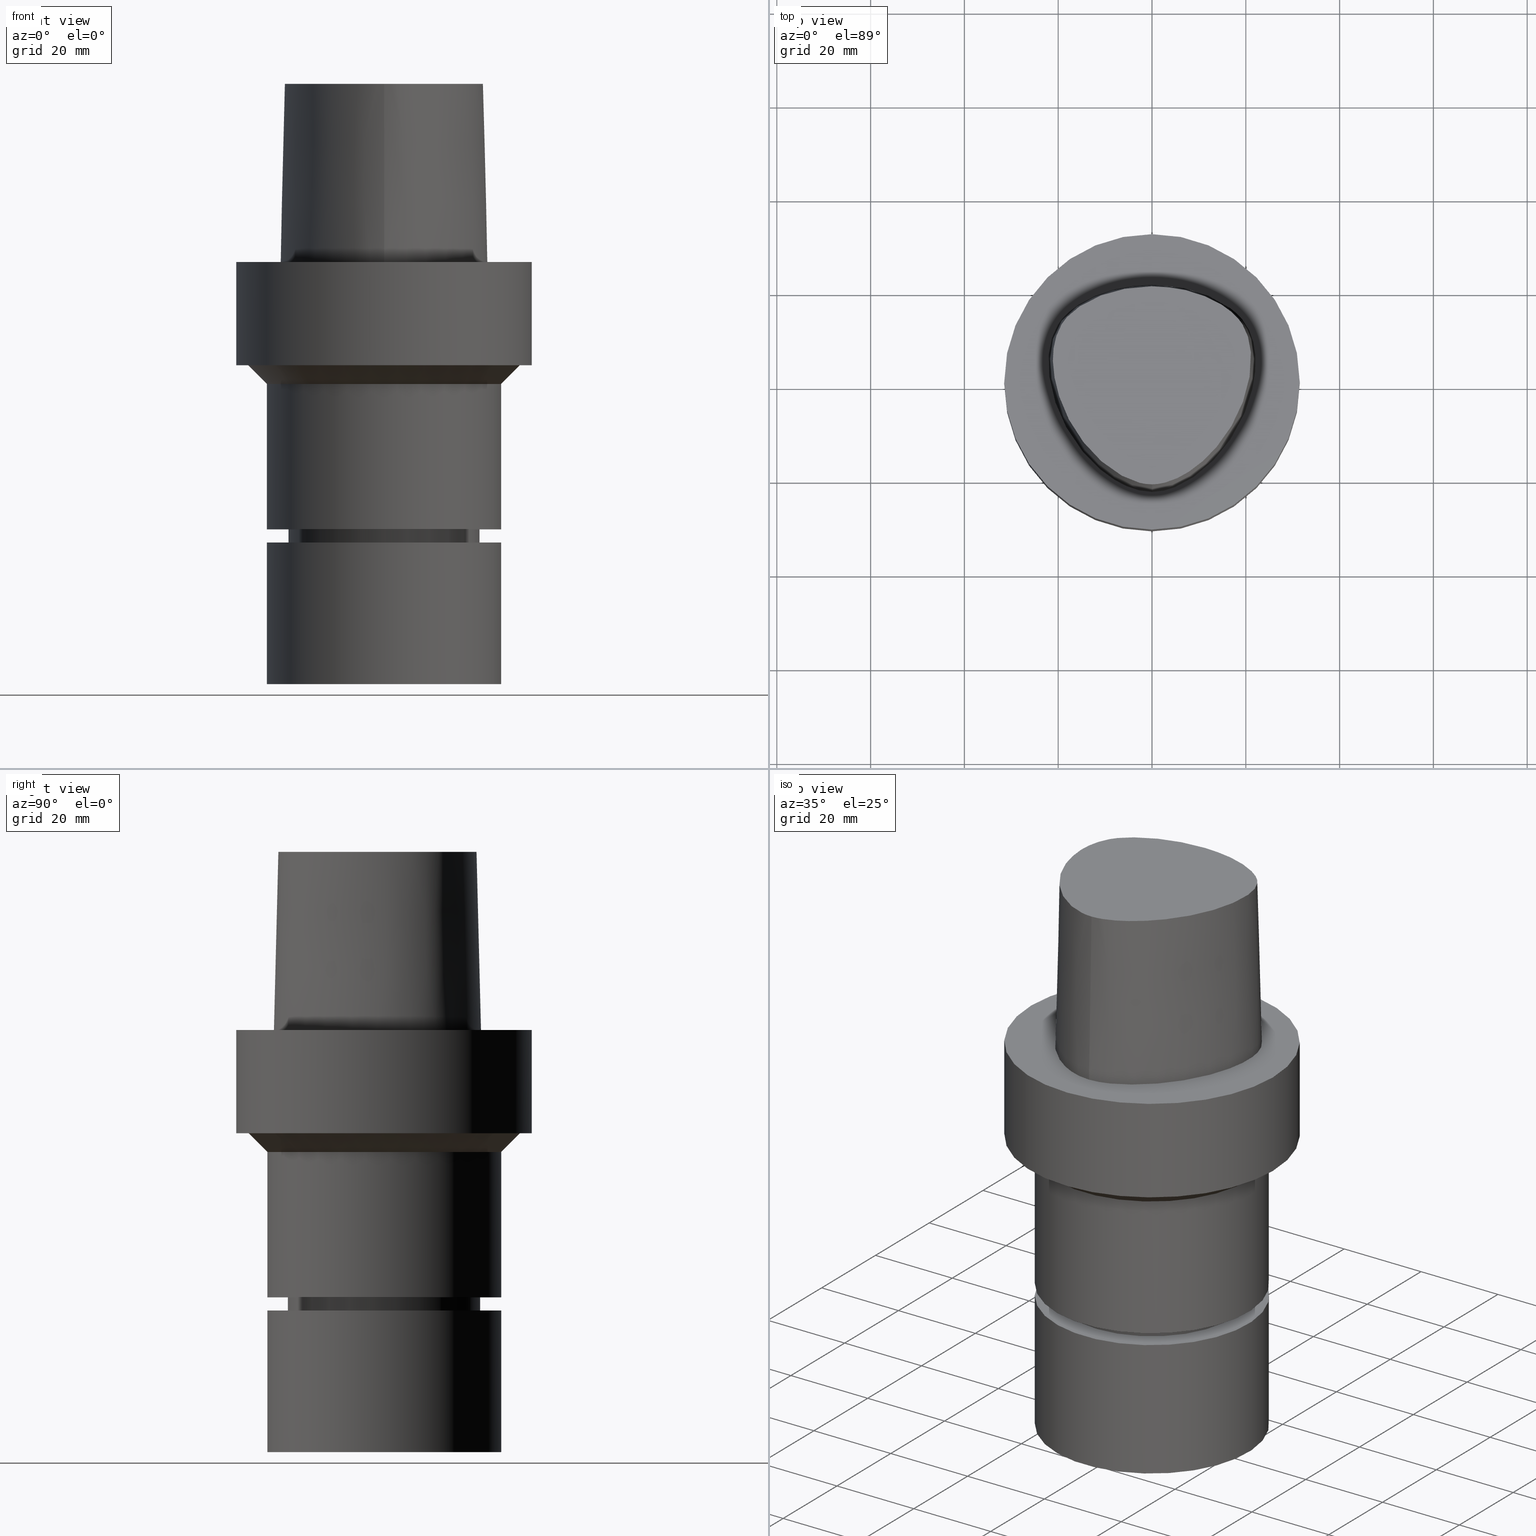
[diagram: canonical four-view strip — front | top / right | iso, engineering-drawing reading convention]
A machine part, canonical four-view strip (front | top / right | iso — engineering-drawing reading convention). The complete STEP part file that produces these views, byte-faithful:
ISO-10303-21;
HEADER;
FILE_DESCRIPTION((''),'1');
FILE_NAME('V:/90_\X2\53D65F9730C730FC30BF\X0\/00_\X2\6DE18DEF30C730FC30BF\X0\/ALL/CAPTO-BKUS\X2\52A05DE556F3\X0\_201801/C6-MEGAER/C6-MEGAER32-90NL.stp','2018-02-01T08:48:47',(''),(''),'Spatial Interop R21 SP3','Kubotek KeyCreator 2011 V10.0.2 (22737)',' ');
FILE_SCHEMA(('automotive_design'));
ENDSEC;
DATA;
#1=MECHANICAL_DESIGN_GEOMETRIC_PRESENTATION_REPRESENTATION(' ',(#14,#15,#16,#17,#18,#19,#20,#21,#22,#23,#24,#25,#26,#27,#28,#29,#30,#31,#32,#33,#34,#35,#36,#37,#38,#39,#40,#41,#42,#43,#44,#45,#46,#47,#48,#49,#50,#51,#52,#53),#10);
#2=PRODUCT_DEFINITION_CONTEXT('',#54,'design');
#3=APPLICATION_PROTOCOL_DEFINITION('INTERNATIONAL STANDARD','automotive_design',1994,#54);
#4=PRODUCT_CATEGORY_RELATIONSHIP('NONE','NONE',#55,#56);
#5=SHAPE_DEFINITION_REPRESENTATION(#57,#58);
#6=PRODUCT_DEFINITION_CONTEXT('',#59,'design');
#7=APPLICATION_PROTOCOL_DEFINITION('INTERNATIONAL STANDARD','automotive_design',1994,#59);
#8=PRODUCT_CATEGORY_RELATIONSHIP('NONE','NONE',#60,#61);
#9=SHAPE_DEFINITION_REPRESENTATION(#62,#63);
#10= (GEOMETRIC_REPRESENTATION_CONTEXT(3)GLOBAL_UNCERTAINTY_ASSIGNED_CONTEXT((#66))GLOBAL_UNIT_ASSIGNED_CONTEXT((#68,#69,#70))REPRESENTATION_CONTEXT('NONE','WORKSPACE'));
#14=STYLED_ITEM('',(#72),#73);
#15=STYLED_ITEM('',(#74),#75);
#16=STYLED_ITEM('',(#76,#77),#78);
#17=STYLED_ITEM('',(#79),#80);
#18=STYLED_ITEM('',(#81,#82),#83);
#19=STYLED_ITEM('',(#84,#85),#86);
#20=STYLED_ITEM('',(#87),#88);
#21=STYLED_ITEM('',(#89,#90),#91);
#22=STYLED_ITEM('',(#92),#93);
#23=STYLED_ITEM('',(#94),#95);
#24=STYLED_ITEM('',(#96,#97),#98);
#25=STYLED_ITEM('',(#99),#100);
#26=STYLED_ITEM('',(#101,#102),#103);
#27=STYLED_ITEM('',(#104),#105);
#28=STYLED_ITEM('',(#106,#107),#108);
#29=STYLED_ITEM('',(#109,#110),#111);
#30=STYLED_ITEM('',(#112),#113);
#31=STYLED_ITEM('',(#114),#115);
#32=STYLED_ITEM('',(#116,#117),#118);
#33=STYLED_ITEM('',(#119,#120),#121);
#34=STYLED_ITEM('',(#122,#123),#124);
#35=STYLED_ITEM('',(#125,#126),#127);
#36=STYLED_ITEM('',(#128,#129),#130);
#37=STYLED_ITEM('',(#131),#132);
#38=STYLED_ITEM('',(#133,#134),#135);
#39=STYLED_ITEM('',(#136,#137),#138);
#40=STYLED_ITEM('',(#139,#140),#141);
#41=STYLED_ITEM('',(#142),#143);
#42=STYLED_ITEM('',(#144,#145),#146);
#43=STYLED_ITEM('',(#147),#148);
#44=STYLED_ITEM('',(#149),#150);
#45=STYLED_ITEM('',(#151),#152);
#46=STYLED_ITEM('',(#153),#154);
#47=STYLED_ITEM('',(#155),#156);
#48=STYLED_ITEM('',(#157,#158),#159);
#49=STYLED_ITEM('',(#160),#161);
#50=STYLED_ITEM('',(#162),#163);
#51=STYLED_ITEM('',(#164),#165);
#52=STYLED_ITEM('',(#166,#167),#168);
#53=STYLED_ITEM('',(#169,#170),#171);
#54=APPLICATION_CONTEXT(' ');
#55=PRODUCT_CATEGORY('part','NONE');
#56=PRODUCT_RELATED_PRODUCT_CATEGORY('detail',' ',(#172));
#57=PRODUCT_DEFINITION_SHAPE('NONE','NONE',#173);
#58=ADVANCED_BREP_SHAPE_REPRESENTATION('Unnamed[1]',(#108,#174),#10);
#59=APPLICATION_CONTEXT(' ');
#60=PRODUCT_CATEGORY('part','NONE');
#61=PRODUCT_RELATED_PRODUCT_CATEGORY('detail',' ',(#175));
#62=PRODUCT_DEFINITION_SHAPE('NONE','NONE',#176);
#63=ADVANCED_BREP_SHAPE_REPRESENTATION('Unnamed[1]',(#138,#177),#10);
#66=UNCERTAINTY_MEASURE_WITH_UNIT(LENGTH_MEASURE(1.0E-006),#68,'','');
#68= (CONVERSION_BASED_UNIT('MILLIMETRE',#180)LENGTH_UNIT()NAMED_UNIT(#183));
#69= (NAMED_UNIT(#185)PLANE_ANGLE_UNIT()SI_UNIT($,.RADIAN.));
#70= (NAMED_UNIT(#185)SOLID_ANGLE_UNIT()SI_UNIT($,.STERADIAN.));
#72=PRESENTATION_STYLE_ASSIGNMENT((#191));
#73=EDGE_CURVE('Unnamed[1]',#192,#192,#193,.T.);
#74=PRESENTATION_STYLE_ASSIGNMENT((#194));
#75=EDGE_CURVE('Unnamed[1]',#195,#195,#196,.T.);
#76=PRESENTATION_STYLE_ASSIGNMENT((#197));
#77=PRESENTATION_STYLE_ASSIGNMENT((#198));
#78=ADVANCED_FACE('Unnamed[1]',(#199,#200),#201,.T.);
#79=PRESENTATION_STYLE_ASSIGNMENT((#202));
#80=EDGE_CURVE('Unnamed[1]',#203,#204,#205,.T.);
#81=PRESENTATION_STYLE_ASSIGNMENT((#206));
#82=PRESENTATION_STYLE_ASSIGNMENT((#207));
#83=ADVANCED_FACE('Unnamed[1]',(#208,#209),#210,.T.);
#84=PRESENTATION_STYLE_ASSIGNMENT((#211));
#85=PRESENTATION_STYLE_ASSIGNMENT((#212));
#86=ADVANCED_FACE('Unnamed[1]',(#213,#214),#215,.T.);
#87=PRESENTATION_STYLE_ASSIGNMENT((#216));
#88=EDGE_CURVE('Unnamed[1]',#217,#217,#218,.T.);
#89=PRESENTATION_STYLE_ASSIGNMENT((#219));
#90=PRESENTATION_STYLE_ASSIGNMENT((#220));
#91=ADVANCED_FACE('Unnamed[1]',(#221),#222,.T.);
#92=PRESENTATION_STYLE_ASSIGNMENT((#223));
#93=EDGE_CURVE('Unnamed[1]',#224,#204,#225,.T.);
#94=PRESENTATION_STYLE_ASSIGNMENT((#226));
#95=EDGE_CURVE('Unnamed[1]',#227,#228,#229,.T.);
#96=PRESENTATION_STYLE_ASSIGNMENT((#230));
#97=PRESENTATION_STYLE_ASSIGNMENT((#231));
#98=ADVANCED_FACE('Unnamed[1]',(#232),#233,.T.);
#99=PRESENTATION_STYLE_ASSIGNMENT((#234));
#100=EDGE_CURVE('Unnamed[1]',#235,#235,#236,.T.);
#101=PRESENTATION_STYLE_ASSIGNMENT((#237));
#102=PRESENTATION_STYLE_ASSIGNMENT((#238));
#103=ADVANCED_FACE('Unnamed[1]',(#239,#240),#241,.T.);
#104=PRESENTATION_STYLE_ASSIGNMENT((#242));
#105=EDGE_CURVE('Unnamed[1]',#243,#243,#244,.T.);
#106=PRESENTATION_STYLE_ASSIGNMENT((#245));
#107=PRESENTATION_STYLE_ASSIGNMENT((#246));
#108=MANIFOLD_SOLID_BREP('Unnamed[1]',#247);
#109=PRESENTATION_STYLE_ASSIGNMENT((#248));
#110=PRESENTATION_STYLE_ASSIGNMENT((#249));
#111=ADVANCED_FACE('Unnamed[1]',(#250,#251),#252,.T.);
#112=PRESENTATION_STYLE_ASSIGNMENT((#253));
#113=EDGE_CURVE('Unnamed[1]',#254,#254,#255,.T.);
#114=PRESENTATION_STYLE_ASSIGNMENT((#256));
#115=EDGE_CURVE('Unnamed[1]',#257,#257,#258,.T.);
#116=PRESENTATION_STYLE_ASSIGNMENT((#259));
#117=PRESENTATION_STYLE_ASSIGNMENT((#260));
#118=ADVANCED_FACE('Unnamed[1]',(#261),#262,.T.);
#119=PRESENTATION_STYLE_ASSIGNMENT((#263));
#120=PRESENTATION_STYLE_ASSIGNMENT((#264));
#121=ADVANCED_FACE('Unnamed[1]',(#265),#266,.T.);
#122=PRESENTATION_STYLE_ASSIGNMENT((#267));
#123=PRESENTATION_STYLE_ASSIGNMENT((#268));
#124=ADVANCED_FACE('Unnamed[1]',(#269),#270,.T.);
#125=PRESENTATION_STYLE_ASSIGNMENT((#271));
#126=PRESENTATION_STYLE_ASSIGNMENT((#272));
#127=ADVANCED_FACE('Unnamed[1]',(#273,#274),#275,.T.);
#128=PRESENTATION_STYLE_ASSIGNMENT((#276));
#129=PRESENTATION_STYLE_ASSIGNMENT((#277));
#130=ADVANCED_FACE('Unnamed[1]',(#278,#279),#280,.T.);
#131=PRESENTATION_STYLE_ASSIGNMENT((#281));
#132=EDGE_CURVE('Unnamed[1]',#282,#282,#283,.T.);
#133=PRESENTATION_STYLE_ASSIGNMENT((#284));
#134=PRESENTATION_STYLE_ASSIGNMENT((#285));
#135=ADVANCED_FACE('Unnamed[1]',(#286,#287),#288,.T.);
#136=PRESENTATION_STYLE_ASSIGNMENT((#289));
#137=PRESENTATION_STYLE_ASSIGNMENT((#290));
#138=MANIFOLD_SOLID_BREP('Unnamed[1]',#291);
#139=PRESENTATION_STYLE_ASSIGNMENT((#292));
#140=PRESENTATION_STYLE_ASSIGNMENT((#293));
#141=ADVANCED_FACE('Unnamed[1]',(#294),#295,.T.);
#142=PRESENTATION_STYLE_ASSIGNMENT((#296));
#143=EDGE_CURVE('Unnamed[1]',#224,#227,#297,.T.);
#144=PRESENTATION_STYLE_ASSIGNMENT((#298));
#145=PRESENTATION_STYLE_ASSIGNMENT((#299));
#146=ADVANCED_FACE('Unnamed[1]',(#300,#301),#302,.T.);
#147=PRESENTATION_STYLE_ASSIGNMENT((#303));
#148=EDGE_CURVE('Unnamed[1]',#204,#228,#304,.T.);
#149=PRESENTATION_STYLE_ASSIGNMENT((#305));
#150=EDGE_CURVE('Unnamed[1]',#228,#203,#306,.T.);
#151=PRESENTATION_STYLE_ASSIGNMENT((#307));
#152=EDGE_CURVE('Unnamed[1]',#308,#308,#309,.T.);
#153=PRESENTATION_STYLE_ASSIGNMENT((#310));
#154=EDGE_CURVE('Unnamed[1]',#311,#311,#312,.T.);
#155=PRESENTATION_STYLE_ASSIGNMENT((#313));
#156=EDGE_CURVE('Unnamed[1]',#227,#224,#314,.T.);
#157=PRESENTATION_STYLE_ASSIGNMENT((#315));
#158=PRESENTATION_STYLE_ASSIGNMENT((#316));
#159=ADVANCED_FACE('Unnamed[1]',(#317),#318,.T.);
#160=PRESENTATION_STYLE_ASSIGNMENT((#319));
#161=EDGE_CURVE('Unnamed[1]',#227,#203,#320,.T.);
#162=PRESENTATION_STYLE_ASSIGNMENT((#321));
#163=EDGE_CURVE('Unnamed[1]',#322,#322,#323,.T.);
#164=PRESENTATION_STYLE_ASSIGNMENT((#324));
#165=EDGE_CURVE('Unnamed[1]',#325,#325,#326,.T.);
#166=PRESENTATION_STYLE_ASSIGNMENT((#327));
#167=PRESENTATION_STYLE_ASSIGNMENT((#328));
#168=ADVANCED_FACE('Unnamed[1]',(#329,#330),#331,.T.);
#169=PRESENTATION_STYLE_ASSIGNMENT((#332));
#170=PRESENTATION_STYLE_ASSIGNMENT((#333));
#171=ADVANCED_FACE('Unnamed[1]',(#334,#335),#336,.T.);
#172=PRODUCT('Unnamed[1]','Unnamed[1]','PART-Unnamed[1]-DESC',(#337));
#173=PRODUCT_DEFINITION('NONE','NONE',#338,#2);
#174=AXIS2_PLACEMENT_3D('',#339,#340,#341);
#175=PRODUCT('Unnamed[1]','Unnamed[1]','PART-Unnamed[1]-DESC',(#342));
#176=PRODUCT_DEFINITION('NONE','NONE',#343,#6);
#177=AXIS2_PLACEMENT_3D('',#344,#345,#346);
#180=LENGTH_MEASURE_WITH_UNIT(LENGTH_MEASURE(1.0),#347);
#183=DIMENSIONAL_EXPONENTS(1.0,0.0,0.0,0.0,0.0,0.0,0.0);
#185=DIMENSIONAL_EXPONENTS(0.0,0.0,0.0,0.0,0.0,0.0,0.0);
#191=CURVE_STYLE('',#348,POSITIVE_LENGTH_MEASURE(1000.0),#349);
#192=VERTEX_POINT('',#350);
#193=CIRCLE('',#351,20.4999999999911);
#194=CURVE_STYLE('',#352,POSITIVE_LENGTH_MEASURE(1000.0),#353);
#195=VERTEX_POINT('',#354);
#196=CIRCLE('',#355,20.0);
#197=SURFACE_STYLE_USAGE(.BOTH.,#356);
#198=CURVE_STYLE('',#357,POSITIVE_LENGTH_MEASURE(1000.0),#358);
#199=FACE_BOUND('',#359,.T.);
#200=FACE_BOUND('',#360,.T.);
#201=CONICAL_SURFACE('',#361,19.4499999999999,0.523598775598219);
#202=CURVE_STYLE('',#362,POSITIVE_LENGTH_MEASURE(1000.0),#363);
#203=VERTEX_POINT('',#364);
#204=VERTEX_POINT('',#365);
#205=B_SPLINE_CURVE_WITH_KNOTS('',3,(#366,#367,#368,#369,#370,#371,#372,#373,#374,#375,#376,#377,#378,#379,#380,#381,#382),.UNSPECIFIED.,.F.,.F.,(4,1,1,1,1,1,1,1,1,1,1,1,1,1,4),(-13.2302678617486,-12.816821991069,-12.4033761203893,-11.9899302497097,-11.57648437903,-11.1630385083504,-10.9563155730106,-10.7495926376707,-10.3361467669911,-9.92270089631145,-9.09580915495216,-8.26891741359287,-7.44202567223358,-7.02857980155394,-6.6151339308743),.UNSPECIFIED.);
#206=SURFACE_STYLE_USAGE(.BOTH.,#383);
#207=CURVE_STYLE('',#384,POSITIVE_LENGTH_MEASURE(1000.0),#385);
#208=FACE_BOUND('',#386,.T.);
#209=FACE_OUTER_BOUND('',#387,.T.);
#210=PLANE('',#388);
#211=SURFACE_STYLE_USAGE(.BOTH.,#389);
#212=CURVE_STYLE('',#390,POSITIVE_LENGTH_MEASURE(1000.0),#391);
#213=FACE_BOUND('',#392,.T.);
#214=FACE_BOUND('',#393,.T.);
#215=CONICAL_SURFACE('',#394,27.0,0.785398163397451);
#216=CURVE_STYLE('',#395,POSITIVE_LENGTH_MEASURE(1000.0),#396);
#217=VERTEX_POINT('',#397);
#218=CIRCLE('',#398,25.0);
#219=SURFACE_STYLE_USAGE(.BOTH.,#399);
#220=CURVE_STYLE('',#400,POSITIVE_LENGTH_MEASURE(1000.0),#401);
#221=FACE_OUTER_BOUND('',#402,.T.);
#222=B_SPLINE_SURFACE_WITH_KNOTS('',3,3,((#403,#404,#405,#406),(#407,#408,#409,#410),(#411,#412,#413,#414),(#415,#416,#417,#418),(#419,#420,#421,#422),(#423,#424,#425,#426),(#427,#428,#429,#430),(#431,#432,#433,#434),(#435,#436,#437,#438),(#439,#440,#441,#442),(#443,#444,#445,#446),(#447,#448,#449,#450),(#451,#452,#453,#454),(#455,#456,#457,#458),(#459,#460,#461,#462),(#463,#464,#465,#466),(#467,#468,#469,#470),(#471,#472,#473,#474)),.UNSPECIFIED.,.F.,.F.,.F.,(4,1,1,1,1,1,1,1,1,2,1,1,1,1,4),(4,4),(-6.6151339308743,-6.20168806019465,-5.78824218951501,-5.37479631883537,-4.96135044815572,-4.13445870679644,-3.30756696543715,-2.89412109475751,-2.48067522407786,-2.06722935339822,-1.65378348271857,-1.24033761203893,-0.826891741359287,-0.413445870679644,0.0),(-3.8,0.0),.UNSPECIFIED.);
#223=CURVE_STYLE('',#475,POSITIVE_LENGTH_MEASURE(1000.0),#476);
#224=VERTEX_POINT('',#477);
#225=LINE('',#478,#479);
#226=CURVE_STYLE('',#480,POSITIVE_LENGTH_MEASURE(1000.0),#481);
#227=VERTEX_POINT('',#482);
#228=VERTEX_POINT('',#483);
#229=LINE('',#484,#485);
#230=SURFACE_STYLE_USAGE(.BOTH.,#486);
#231=CURVE_STYLE('',#487,POSITIVE_LENGTH_MEASURE(1000.0),#488);
#232=FACE_OUTER_BOUND('',#489,.T.);
#233=PLANE('',#490);
#234=CURVE_STYLE('',#491,POSITIVE_LENGTH_MEASURE(1000.0),#492);
#235=VERTEX_POINT('',#493);
#236=CIRCLE('',#494,18.8999999999997);
#237=SURFACE_STYLE_USAGE(.BOTH.,#495);
#238=CURVE_STYLE('',#496,POSITIVE_LENGTH_MEASURE(1000.0),#497);
#239=FACE_BOUND('',#498,.T.);
#240=FACE_OUTER_BOUND('',#499,.T.);
#241=PLANE('',#500);
#242=CURVE_STYLE('',#501,POSITIVE_LENGTH_MEASURE(1000.0),#502);
#243=VERTEX_POINT('',#503);
#244=CIRCLE('',#504,20.5000000000012);
#245=SURFACE_STYLE_USAGE(.BOTH.,#505);
#246=CURVE_STYLE('',#506,POSITIVE_LENGTH_MEASURE(1000.0),#507);
#247=CLOSED_SHELL('',(#118,#91,#121,#159,#130,#127,#83,#86,#135,#103,#111,#171,#168,#78,#124));
#248=SURFACE_STYLE_USAGE(.BOTH.,#508);
#249=CURVE_STYLE('',#509,POSITIVE_LENGTH_MEASURE(1000.0),#510);
#250=FACE_BOUND('',#511,.T.);
#251=FACE_BOUND('',#512,.T.);
#252=CYLINDRICAL_SURFACE('',#513,20.4999999999961);
#253=CURVE_STYLE('',#514,POSITIVE_LENGTH_MEASURE(1000.0),#515);
#254=VERTEX_POINT('',#516);
#255=CIRCLE('',#517,31.5);
#256=CURVE_STYLE('',#518,POSITIVE_LENGTH_MEASURE(1000.0),#519);
#257=VERTEX_POINT('',#520);
#258=CIRCLE('',#521,25.0);
#259=SURFACE_STYLE_USAGE(.BOTH.,#522);
#260=CURVE_STYLE('',#523,POSITIVE_LENGTH_MEASURE(1000.0),#524);
#261=FACE_OUTER_BOUND('',#525,.T.);
#262=B_SPLINE_SURFACE_WITH_KNOTS('',3,3,((#526,#527,#528,#529),(#530,#531,#532,#533),(#534,#535,#536,#537),(#538,#539,#540,#541),(#542,#543,#544,#545),(#546,#547,#548,#549),(#550,#551,#552,#553),(#554,#555,#556,#557),(#558,#559,#560,#561),(#562,#563,#564,#565),(#566,#567,#568,#569),(#570,#571,#572,#573),(#574,#575,#576,#577),(#578,#579,#580,#581),(#582,#583,#584,#585),(#586,#587,#588,#589),(#590,#591,#592,#593)),.UNSPECIFIED.,.F.,.F.,.F.,(4,1,1,1,1,1,1,1,1,1,1,1,1,1,4),(4,4),(-13.2302678617486,-12.816821991069,-12.4033761203893,-11.9899302497097,-11.57648437903,-11.1630385083504,-10.9563155730106,-10.7495926376707,-10.3361467669911,-9.92270089631145,-9.09580915495216,-8.26891741359287,-7.44202567223358,-7.02857980155394,-6.6151339308743),(-3.8,0.0),.UNSPECIFIED.);
#263=SURFACE_STYLE_USAGE(.BOTH.,#594);
#264=CURVE_STYLE('',#595,POSITIVE_LENGTH_MEASURE(1000.0),#596);
#265=FACE_OUTER_BOUND('',#597,.T.);
#266=CONICAL_SURFACE('',#598,1.0,0.0249931148600041);
#267=SURFACE_STYLE_USAGE(.BOTH.,#599);
#268=CURVE_STYLE('',#600,POSITIVE_LENGTH_MEASURE(1000.0),#601);
#269=FACE_OUTER_BOUND('',#602,.T.);
#270=PLANE('',#603);
#271=SURFACE_STYLE_USAGE(.BOTH.,#604);
#272=CURVE_STYLE('',#605,POSITIVE_LENGTH_MEASURE(1000.0),#606);
#273=FACE_BOUND('',#607,.T.);
#274=FACE_BOUND('',#608,.T.);
#275=CYLINDRICAL_SURFACE('',#609,31.5);
#276=SURFACE_STYLE_USAGE(.BOTH.,#610);
#277=CURVE_STYLE('',#611,POSITIVE_LENGTH_MEASURE(1000.0),#612);
#278=FACE_BOUND('',#613,.T.);
#279=FACE_OUTER_BOUND('',#614,.T.);
#280=PLANE('',#615);
#281=CURVE_STYLE('',#616,POSITIVE_LENGTH_MEASURE(1000.0),#617);
#282=VERTEX_POINT('',#618);
#283=CIRCLE('',#619,25.0);
#284=SURFACE_STYLE_USAGE(.BOTH.,#620);
#285=CURVE_STYLE('',#621,POSITIVE_LENGTH_MEASURE(1000.0),#622);
#286=FACE_BOUND('',#623,.T.);
#287=FACE_BOUND('',#624,.T.);
#288=CYLINDRICAL_SURFACE('',#625,25.0);
#289=SURFACE_STYLE_USAGE(.BOTH.,#626);
#290=CURVE_STYLE('',#627,POSITIVE_LENGTH_MEASURE(1000.0),#628);
#291=CLOSED_SHELL('',(#141,#98,#146));
#292=SURFACE_STYLE_USAGE(.BOTH.,#629);
#293=CURVE_STYLE('',#630,POSITIVE_LENGTH_MEASURE(1000.0),#631);
#294=FACE_OUTER_BOUND('',#632,.T.);
#295=PLANE('',#633);
#296=CURVE_STYLE('',#634,POSITIVE_LENGTH_MEASURE(1000.0),#635);
#297=B_SPLINE_CURVE_WITH_KNOTS('',3,(#636,#637,#638,#639,#640,#641,#642,#643,#644,#645,#646,#647,#648,#649,#650,#651),.UNSPECIFIED.,.F.,.F.,(4,1,1,1,1,1,1,1,1,1,1,1,1,4),(6.61513393087476,6.99917207152274,7.48193246986995,7.96289324787093,8.45540287038584,9.10291653679981,9.67129810936083,10.1618749681153,10.6358867802489,11.1080734988593,11.6043706019633,12.09451993853,12.6985979284494,13.2302678617486),.UNSPECIFIED.);
#298=SURFACE_STYLE_USAGE(.BOTH.,#652);
#299=CURVE_STYLE('',#653,POSITIVE_LENGTH_MEASURE(1000.0),#654);
#300=FACE_BOUND('',#655,.T.);
#301=FACE_BOUND('',#656,.T.);
#302=CYLINDRICAL_SURFACE('',#657,25.0);
#303=CURVE_STYLE('',#658,POSITIVE_LENGTH_MEASURE(1000.0),#659);
#304=B_SPLINE_CURVE_WITH_KNOTS('',3,(#660,#661,#662,#663,#664,#665,#666,#667,#668,#669,#670,#671,#672,#673,#674,#675,#676,#677),.UNSPECIFIED.,.F.,.F.,(4,1,1,1,1,1,1,1,1,2,1,1,1,1,4),(-6.6151339308743,-6.20168806019465,-5.78824218951501,-5.37479631883537,-4.96135044815572,-4.13445870679644,-3.30756696543715,-2.89412109475751,-2.48067522407786,-2.06722935339822,-1.65378348271857,-1.24033761203893,-0.826891741359287,-0.413445870679644,0.0),.UNSPECIFIED.);
#305=CURVE_STYLE('',#678,POSITIVE_LENGTH_MEASURE(1000.0),#679);
#306=CIRCLE('',#680,0.949936168436318);
#307=CURVE_STYLE('',#681,POSITIVE_LENGTH_MEASURE(1000.0),#682);
#308=VERTEX_POINT('',#683);
#309=CIRCLE('',#684,31.5);
#310=CURVE_STYLE('',#685,POSITIVE_LENGTH_MEASURE(1000.0),#686);
#311=VERTEX_POINT('',#687);
#312=CIRCLE('',#688,29.0);
#313=CURVE_STYLE('',#689,POSITIVE_LENGTH_MEASURE(1000.0),#690);
#314=B_SPLINE_CURVE_WITH_KNOTS('',3,(#691,#692,#693,#694,#695,#696,#697,#698,#699,#700,#701,#702,#703,#704,#705,#706),.UNSPECIFIED.,.F.,.F.,(4,1,1,1,1,1,1,1,1,1,1,1,1,4),(0.0,0.447924670568964,0.9388024242536,1.50591409090711,2.07314340012323,2.72424957442464,3.2253501842849,3.80982102049476,4.34867996267067,4.85900173381144,5.37972031856977,6.03459825488646,6.61113557741484,6.61513393087395),.UNSPECIFIED.);
#315=SURFACE_STYLE_USAGE(.BOTH.,#707);
#316=CURVE_STYLE('',#708,POSITIVE_LENGTH_MEASURE(1000.0),#709);
#317=FACE_OUTER_BOUND('',#710,.T.);
#318=PLANE('',#711);
#319=CURVE_STYLE('',#712,POSITIVE_LENGTH_MEASURE(1000.0),#713);
#320=LINE('',#714,#715);
#321=CURVE_STYLE('',#716,POSITIVE_LENGTH_MEASURE(1000.0),#717);
#322=VERTEX_POINT('',#718);
#323=CIRCLE('',#719,20.0000000000001);
#324=CURVE_STYLE('',#720,POSITIVE_LENGTH_MEASURE(1000.0),#721);
#325=VERTEX_POINT('',#722);
#326=CIRCLE('',#723,25.0);
#327=SURFACE_STYLE_USAGE(.BOTH.,#724);
#328=CURVE_STYLE('',#725,POSITIVE_LENGTH_MEASURE(1000.0),#726);
#329=FACE_BOUND('',#727,.T.);
#330=FACE_BOUND('',#728,.T.);
#331=CYLINDRICAL_SURFACE('',#729,20.0);
#332=SURFACE_STYLE_USAGE(.BOTH.,#730);
#333=CURVE_STYLE('',#731,POSITIVE_LENGTH_MEASURE(1000.0),#732);
#334=FACE_BOUND('',#733,.T.);
#335=FACE_BOUND('',#734,.T.);
#336=CONICAL_SURFACE('',#735,20.2500000000006,1.04719755120248);
#337=PRODUCT_CONTEXT('',#54,'mechanical');
#338=PRODUCT_DEFINITION_FORMATION_WITH_SPECIFIED_SOURCE(' ','NONE',#172,.NOT_KNOWN.);
#339=CARTESIAN_POINT('',(0.0,0.0,0.0));
#340=DIRECTION('',(0.0,0.0,1.0));
#341=DIRECTION('',(1.0,0.0,0.0));
#342=PRODUCT_CONTEXT('',#59,'mechanical');
#343=PRODUCT_DEFINITION_FORMATION_WITH_SPECIFIED_SOURCE(' ','NONE',#175,.NOT_KNOWN.);
#344=CARTESIAN_POINT('',(0.0,0.0,0.0));
#345=DIRECTION('',(0.0,0.0,1.0));
#346=DIRECTION('',(1.0,0.0,0.0));
#347= (NAMED_UNIT(#183)LENGTH_UNIT()SI_UNIT(.MILLI.,.METRE.));
#348=DRAUGHTING_PRE_DEFINED_CURVE_FONT('continuous');
#349=COLOUR_RGB('',0.0,1.0,0.0);
#350=CARTESIAN_POINT('',(3.49025302591328E-015,20.4999999999911,-57.0001575694042));
#351=AXIS2_PLACEMENT_3D('',#737,#738,#739);
#352=DRAUGHTING_PRE_DEFINED_CURVE_FONT('continuous');
#353=COLOUR_RGB('',0.0,1.0,0.0);
#354=CARTESIAN_POINT('',(3.88826323563546E-015,20.0,-63.5001575693925));
#355=AXIS2_PLACEMENT_3D('',#740,#741,#742);
#356=SURFACE_SIDE_STYLE('',(#743));
#357=DRAUGHTING_PRE_DEFINED_CURVE_FONT('continuous');
#358=COLOUR_RGB('',0.0,1.0,0.0);
#359=EDGE_LOOP('',(#744));
#360=EDGE_LOOP('',(#745));
#361=AXIS2_PLACEMENT_3D('',#746,#747,#748);
#362=DRAUGHTING_PRE_DEFINED_CURVE_FONT('continuous');
#363=COLOUR_RGB('',0.0,1.0,0.0);
#364=CARTESIAN_POINT('',(0.044682985379347,20.6765087343109,1.61778115328528E-031));
#365=CARTESIAN_POINT('',(0.04359356758149,-23.4691235068931,7.78075697532443E-032));
#366=CARTESIAN_POINT('',(0.044682985379347,20.6765087343109,1.61778115328528E-031));
#367=CARTESIAN_POINT('',(1.42379272427753,20.6097915814392,8.62816615085482E-032));
#368=CARTESIAN_POINT('',(4.2230955003445,20.4837538303966,1.4791141972894E-031));
#369=CARTESIAN_POINT('',(8.47220762821777,19.6890432607088,9.86076131526265E-032));
#370=CARTESIAN_POINT('',(12.5141247708253,18.2434968480404,0.0));
#371=CARTESIAN_POINT('',(16.3038624872874,16.1734192182143,1.97215226305253E-031));
#372=CARTESIAN_POINT('',(19.1446913988473,13.7036723639434,-1.97215226305253E-031));
#373=CARTESIAN_POINT('',(20.7319894342149,11.1014620996188,0.0));
#374=CARTESIAN_POINT('',(21.7831756505763,8.28099229708081,-1.97215226305253E-031));
#375=CARTESIAN_POINT('',(22.2258240701438,4.60865440596506,0.0));
#376=CARTESIAN_POINT('',(21.7436130080666,-1.11326526354485,0.0));
#377=CARTESIAN_POINT('',(19.5519487660502,-7.95432366164584,0.0));
#378=CARTESIAN_POINT('',(14.9574167123838,-15.2089785567293,0.0));
#379=CARTESIAN_POINT('',(9.66840283021945,-20.0827414369705,-9.86076131526265E-032));
#380=CARTESIAN_POINT('',(4.51628650521788,-22.7946374572188,-9.86076131526265E-032));
#381=CARTESIAN_POINT('',(1.55867251738073,-23.4612972770043,-1.23259516440783E-032));
#382=CARTESIAN_POINT('',(0.04359356758149,-23.4691235068931,7.78075697532443E-032));
#383=SURFACE_SIDE_STYLE('',(#749));
#384=DRAUGHTING_PRE_DEFINED_CURVE_FONT('continuous');
#385=COLOUR_RGB('',0.0,1.0,0.0);
#386=EDGE_LOOP('',(#750));
#387=EDGE_LOOP('',(#751));
#388=AXIS2_PLACEMENT_3D('',#752,#753,#754);
#389=SURFACE_SIDE_STYLE('',(#755));
#390=DRAUGHTING_PRE_DEFINED_CURVE_FONT('continuous');
#391=COLOUR_RGB('',0.0,1.0,0.0);
#392=EDGE_LOOP('',(#756));
#393=EDGE_LOOP('',(#757));
#394=AXIS2_PLACEMENT_3D('',#758,#759,#760);
#395=DRAUGHTING_PRE_DEFINED_CURVE_FONT('continuous');
#396=COLOUR_RGB('',0.0,1.0,0.0);
#397=CARTESIAN_POINT('',(3.66169392945059E-015,25.0,-59.8));
#398=AXIS2_PLACEMENT_3D('',#761,#762,#763);
#399=SURFACE_SIDE_STYLE('',(#764));
#400=DRAUGHTING_PRE_DEFINED_CURVE_FONT('continuous');
#401=COLOUR_RGB('',0.0,1.0,0.0);
#402=EDGE_LOOP('',(#765,#766,#767,#768));
#403=CARTESIAN_POINT('',(0.038736923393866,-22.5191997536361,38.0));
#404=CARTESIAN_POINT('',(0.04035580478973,-22.8358410047159,25.3333333333066));
#405=CARTESIAN_POINT('',(0.041974686185626,-23.1524822558133,12.6666666666934));
#406=CARTESIAN_POINT('',(0.04359356758149,-23.4691235068931,7.78075697532443E-032));
#407=CARTESIAN_POINT('',(-1.33786123484754,-22.5261650259856,38.0));
#408=CARTESIAN_POINT('',(-1.38240731367927,-22.8430399310626,25.3333333333066));
#409=CARTESIAN_POINT('',(-1.42695339249092,-23.1599147815484,12.6666666666934));
#410=CARTESIAN_POINT('',(-1.4714994713963,-23.4767895315797,2.46519032881566E-032));
#411=CARTESIAN_POINT('',(-4.08909358431842,-21.9268839879558,38.0));
#412=CARTESIAN_POINT('',(-4.20580731135515,-22.2249725500078,25.3333333333066));
#413=CARTESIAN_POINT('',(-4.32252104640446,-22.5230611651922,12.6666666666934));
#414=CARTESIAN_POINT('',(-4.43923476371401,-22.821149804767,-4.93038065763132E-032));
#415=CARTESIAN_POINT('',(-7.8333083619947,-19.9973514861616,38.0));
#416=CARTESIAN_POINT('',(-8.00568301809614,-20.2649260859405,25.3333333333066));
#417=CARTESIAN_POINT('',(-8.1780576640789,-20.532500564315,12.6666666666934));
#418=CARTESIAN_POINT('',(-8.35043230079961,-20.8000751253325,-9.86076131526265E-032));
#419=CARTESIAN_POINT('',(-11.1035071147626,-17.450554957873,38.0));
#420=CARTESIAN_POINT('',(-11.3173048160562,-17.6855739222454,25.3333333333066));
#421=CARTESIAN_POINT('',(-11.5311025116181,-17.9205928617968,12.6666666666934));
#422=CARTESIAN_POINT('',(-11.744900222602,-18.1556117874078,-1.97215226305253E-031));
#423=CARTESIAN_POINT('',(-14.9379535189057,-13.461132049697,38.0));
#424=CARTESIAN_POINT('',(-15.191622410671,-13.6542981711372,25.3333333333066));
#425=CARTESIAN_POINT('',(-15.4452913389853,-13.8474645327131,12.6666666666934));
#426=CARTESIAN_POINT('',(-15.6989602501314,-14.0406306929147,-1.97215226305253E-031));
#427=CARTESIAN_POINT('',(-18.6681263017223,-7.59391757463204,38.0));
#428=CARTESIAN_POINT('',(-18.9571800800711,-7.73136168081928,25.3333333333066));
#429=CARTESIAN_POINT('',(-19.2462337287194,-7.86880572399774,12.6666666666934));
#430=CARTESIAN_POINT('',(-19.5352875070682,-8.00624990770787,1.97215226305253E-031));
#431=CARTESIAN_POINT('',(-20.7857899858339,-0.952862819790525,38.0));
#432=CARTESIAN_POINT('',(-21.0973808305434,-1.02218087467418,25.3333333333066));
#433=CARTESIAN_POINT('',(-21.408971677436,-1.09149899580772,12.6666666666934));
#434=CARTESIAN_POINT('',(-21.7205626190491,-1.16081708945282,0.0));
#435=CARTESIAN_POINT('',(-21.2911760556836,4.5469215763113,38.0));
#436=CARTESIAN_POINT('',(-21.610337904926,4.54783292082248,25.3333333333066));
#437=CARTESIAN_POINT('',(-21.9294998290918,4.54874426225691,12.6666666666934));
#438=CARTESIAN_POINT('',(-22.2486616783342,4.54965558738736,0.0));
#439=CARTESIAN_POINT('',(-20.7345309521958,8.74909381391006,38.0));
#440=CARTESIAN_POINT('',(-21.0445680426217,8.83349432450556,25.3333333333066));
#441=CARTESIAN_POINT('',(-21.3546050933631,8.91789488065068,12.6666666666934));
#442=CARTESIAN_POINT('',(-21.6646421256468,9.00229539124618,0.0));
#443=CARTESIAN_POINT('',(-19.5531512296439,11.3174844040833,38.0));
#444=CARTESIAN_POINT('',(-19.8336219699984,11.4710077674213,25.3333333333066));
#445=CARTESIAN_POINT('',(-20.1140927680763,11.6245311337623,12.6666666666934));
#446=CARTESIAN_POINT('',(-20.3945635471922,11.7780544971003,0.0));
#447=CARTESIAN_POINT('',(-17.9100913688793,13.524027510437,38.0));
#448=CARTESIAN_POINT('',(-18.1375785458768,13.7487051053655,25.3333333333066));
#449=CARTESIAN_POINT('',(-18.365065665211,13.9733826973296,12.6666666666934));
#450=CARTESIAN_POINT('',(-18.5925528034471,14.1980602922581,0.0));
#451=CARTESIAN_POINT('',(-15.7996349656398,15.3762170634413,38.0));
#452=CARTESIAN_POINT('',(-15.9739761051783,15.6434029846179,25.3333333333066));
#453=CARTESIAN_POINT('',(-16.1483172726872,15.9105889315134,12.6666666666934));
#454=CARTESIAN_POINT('',(-16.3226584122258,16.1777748720707,0.0));
#455=CARTESIAN_POINT('',(-12.1175640002064,17.3825162484012,38.0));
#456=CARTESIAN_POINT('',(-12.2475895903055,17.6724842099619,25.3333333333066));
#457=CARTESIAN_POINT('',(-12.3776152070492,17.9624521925696,12.6666666666934));
#458=CARTESIAN_POINT('',(-12.5076407874579,18.2524201541303,9.86076131526265E-032));
#459=CARTESIAN_POINT('',(-8.21761151654222,18.7588585989994,38.0));
#460=CARTESIAN_POINT('',(-8.30099497910627,19.0656105427881,25.3333333333066));
#461=CARTESIAN_POINT('',(-8.38437843913309,19.3723624535439,12.6666666666934));
#462=CARTESIAN_POINT('',(-8.46776192107786,19.679114377952,9.86076131526265E-032));
#463=CARTESIAN_POINT('',(-4.13466093881225,19.5396850837055,38.0));
#464=CARTESIAN_POINT('',(-4.16658562115465,19.8557172636973,25.3333333333066));
#465=CARTESIAN_POINT('',(-4.19851029939059,20.1717494367229,12.6666666666934));
#466=CARTESIAN_POINT('',(-4.23043497193604,20.487781597334,1.97215226305253E-031));
#467=CARTESIAN_POINT('',(-1.37917220403684,19.6638560588908,38.0));
#468=CARTESIAN_POINT('',(-1.39382511685176,19.98016223565,25.3333333333066));
#469=CARTESIAN_POINT('',(-1.40847802945569,20.296468399885,12.6666666666934));
#470=CARTESIAN_POINT('',(-1.42313094248379,20.6127745766442,1.10933564796705E-031));
#471=CARTESIAN_POINT('',(-0.001218547003662,19.7276821925089,38.0));
#472=CARTESIAN_POINT('',(-0.015869696232855,20.043988446791,25.3333333333066));
#473=CARTESIAN_POINT('',(-0.030520845462092,20.3602947010464,12.6666666666934));
#474=CARTESIAN_POINT('',(-0.045171994691285,20.6766009553285,1.6755590516169E-031));
#475=DRAUGHTING_PRE_DEFINED_CURVE_FONT('continuous');
#476=COLOUR_RGB('',0.0,1.0,0.0);
#477=CARTESIAN_POINT('',(0.038736923393866,-22.5191997536361,38.0));
#478=CARTESIAN_POINT('',(0.038736923393866,-22.5191997536361,38.0));
#479=VECTOR('',#769,38.0118715498723);
#480=DRAUGHTING_PRE_DEFINED_CURVE_FONT('continuous');
#481=COLOUR_RGB('',0.0,1.0,0.0);
#482=CARTESIAN_POINT('',(-0.001218547003662,19.7276821925089,38.0));
#483=CARTESIAN_POINT('',(-0.045171994691285,20.6766009553285,1.6755590516169E-031));
#484=CARTESIAN_POINT('',(-0.001218547003662,19.7276821925089,38.0));
#485=VECTOR('',#770,38.0118715498723);
#486=SURFACE_SIDE_STYLE('',(#771));
#487=DRAUGHTING_PRE_DEFINED_CURVE_FONT('continuous');
#488=COLOUR_RGB('',0.0,1.0,0.0);
#489=EDGE_LOOP('',(#772));
#490=AXIS2_PLACEMENT_3D('',#773,#774,#775);
#491=DRAUGHTING_PRE_DEFINED_CURVE_FONT('continuous');
#492=COLOUR_RGB('',0.0,1.0,0.0);
#493=CARTESIAN_POINT('',(4.83735485663205E-015,18.8999999999997,-79.0000000000001));
#494=AXIS2_PLACEMENT_3D('',#776,#777,#778);
#495=SURFACE_SIDE_STYLE('',(#779));
#496=DRAUGHTING_PRE_DEFINED_CURVE_FONT('continuous');
#497=COLOUR_RGB('',0.0,1.0,0.0);
#498=EDGE_LOOP('',(#780));
#499=EDGE_LOOP('',(#781));
#500=AXIS2_PLACEMENT_3D('',#782,#783,#784);
#501=DRAUGHTING_PRE_DEFINED_CURVE_FONT('continuous');
#502=COLOUR_RGB('',0.0,1.0,0.0);
#503=CARTESIAN_POINT('',(3.87058698165691E-015,20.5000000000012,-63.211482434801));
#504=AXIS2_PLACEMENT_3D('',#785,#786,#787);
#505=SURFACE_SIDE_STYLE('',(#788));
#506=DRAUGHTING_PRE_DEFINED_CURVE_FONT('continuous');
#507=COLOUR_RGB('',0.0,1.0,0.0);
#508=SURFACE_SIDE_STYLE('',(#789));
#509=DRAUGHTING_PRE_DEFINED_CURVE_FONT('continuous');
#510=COLOUR_RGB('',0.0,1.0,0.0);
#511=EDGE_LOOP('',(#790));
#512=EDGE_LOOP('',(#791));
#513=AXIS2_PLACEMENT_3D('',#792,#793,#794);
#514=DRAUGHTING_PRE_DEFINED_CURVE_FONT('continuous');
#515=COLOUR_RGB('',0.0,1.0,0.0);
#516=CARTESIAN_POINT('',(-3.88267476788467E-031,31.5,3.85763741731416E-015));
#517=AXIS2_PLACEMENT_3D('',#795,#796,#797);
#518=DRAUGHTING_PRE_DEFINED_CURVE_FONT('continuous');
#519=COLOUR_RGB('',0.0,1.0,0.0);
#520=CARTESIAN_POINT('',(3.49025302591325E-015,25.0,-57.0001575694037));
#521=AXIS2_PLACEMENT_3D('',#798,#799,#800);
#522=SURFACE_SIDE_STYLE('',(#801));
#523=DRAUGHTING_PRE_DEFINED_CURVE_FONT('continuous');
#524=COLOUR_RGB('',0.0,1.0,0.0);
#525=EDGE_LOOP('',(#802,#803,#804,#805));
#526=CARTESIAN_POINT('',(-0.001218367817519,19.7276822012873,38.0));
#527=CARTESIAN_POINT('',(0.014082083248157,20.0439577123075,25.3333333333066));
#528=CARTESIAN_POINT('',(0.029382534313671,20.3602332232908,12.6666666666934));
#529=CARTESIAN_POINT('',(0.044682985379347,20.6765087343109,1.61778115328528E-031));
#530=CARTESIAN_POINT('',(1.37788651195108,19.6609652834875,38.0));
#531=CARTESIAN_POINT('',(1.3931885827258,19.9772407169847,25.3333333333066));
#532=CARTESIAN_POINT('',(1.40849065356095,20.2935162254648,12.6666666666934));
#533=CARTESIAN_POINT('',(1.42379272427753,20.6097915814392,8.62816615085482E-032));
#534=CARTESIAN_POINT('',(4.135446440878,19.5347778787784,38.0));
#535=CARTESIAN_POINT('',(4.16466278851883,19.8511031866125,25.3333333333066));
#536=CARTESIAN_POINT('',(4.1938791526746,20.1674284644204,12.6666666666934));
#537=CARTESIAN_POINT('',(4.2230955003445,20.4837538303966,1.4791141972894E-031));
#538=CARTESIAN_POINT('',(8.213607363795,18.7706026638736,38.0));
#539=CARTESIAN_POINT('',(8.29980745008421,19.0767495109635,25.3333333333066));
#540=CARTESIAN_POINT('',(8.38600751285747,19.3828964329996,12.6666666666934));
#541=CARTESIAN_POINT('',(8.47220762821777,19.6890432607088,9.86076131526265E-032));
#542=CARTESIAN_POINT('',(12.1316338645671,17.3698624840857,38.0));
#543=CARTESIAN_POINT('',(12.2591308270381,17.6610739397708,25.3333333333066));
#544=CARTESIAN_POINT('',(12.3866278083543,17.9522853923553,12.6666666666934));
#545=CARTESIAN_POINT('',(12.5141247708253,18.2434968480404,0.0));
#546=CARTESIAN_POINT('',(15.7706546153679,15.3789501349612,38.0));
#547=CARTESIAN_POINT('',(15.9483905900895,15.6437731794811,25.3333333333066));
#548=CARTESIAN_POINT('',(16.1261265513272,15.9085961736944,12.6666666666934));
#549=CARTESIAN_POINT('',(16.3038624872874,16.1734192182143,1.97215226305253E-031));
#550=CARTESIAN_POINT('',(18.4265894256284,13.0570022172893,38.0));
#551=CARTESIAN_POINT('',(18.6659567517146,13.2725589420689,25.3333333333066));
#552=CARTESIAN_POINT('',(18.9053240921419,13.4881156488541,12.6666666666934));
#553=CARTESIAN_POINT('',(19.1446913988473,13.7036723639434,-1.97215226305253E-031));
#554=CARTESIAN_POINT('',(19.8679958653038,10.6923771981998,38.0));
#555=CARTESIAN_POINT('',(20.1559937048299,10.8287388264873,25.3333333333066));
#556=CARTESIAN_POINT('',(20.4439915656177,10.965100461641,12.6666666666934));
#557=CARTESIAN_POINT('',(20.7319894342149,11.1014620996188,0.0));
#558=CARTESIAN_POINT('',(20.8470867582337,8.07149548576131,38.0));
#559=CARTESIAN_POINT('',(21.1591164072431,8.14132775555392,25.3333333333066));
#560=CARTESIAN_POINT('',(21.4711459821861,8.21116003697855,12.6666666666934));
#561=CARTESIAN_POINT('',(21.7831756505763,8.28099229708081,-1.97215226305253E-031));
#562=CARTESIAN_POINT('',(21.2693244256982,4.61157245650171,38.0));
#563=CARTESIAN_POINT('',(21.5881576801997,4.6105997689982,25.3333333333066));
#564=CARTESIAN_POINT('',(21.9069908544037,4.60962709346857,12.6666666666934));
#565=CARTESIAN_POINT('',(22.2258240701438,4.60865440596506,0.0));
#566=CARTESIAN_POINT('',(20.8071610855575,-0.912828649855193,38.0));
#567=CARTESIAN_POINT('',(21.119311671178,-0.979640884839481,25.3333333333066));
#568=CARTESIAN_POINT('',(21.4314624224461,-1.04645306732201,12.6666666666934));
#569=CARTESIAN_POINT('',(21.7436130080666,-1.11326526354485,0.0));
#570=CARTESIAN_POINT('',(18.6841935581315,-7.54428794252837,38.0));
#571=CARTESIAN_POINT('',(18.9734452551861,-7.6809665891091,25.3333333333066));
#572=CARTESIAN_POINT('',(19.2626970689956,-7.81764505382656,12.6666666666934));
#573=CARTESIAN_POINT('',(19.5519487660502,-7.95432366164584,0.0));
#574=CARTESIAN_POINT('',(14.2175552814,-14.5971504342323,38.0));
#575=CARTESIAN_POINT('',(14.4641757465198,-14.8010930946929,25.3333333333066));
#576=CARTESIAN_POINT('',(14.710796247264,-15.0050359737917,12.6666666666934));
#577=CARTESIAN_POINT('',(14.9574167123838,-15.2089785567293,0.0));
#578=CARTESIAN_POINT('',(9.0844808732933,-19.3179298129689,38.0));
#579=CARTESIAN_POINT('',(9.27912152349017,-19.572866915557,25.3333333333066));
#580=CARTESIAN_POINT('',(9.47376218971294,-19.827804295621,12.6666666666934));
#581=CARTESIAN_POINT('',(9.66840283021945,-20.0827414369705,-9.86076131526265E-032));
#582=CARTESIAN_POINT('',(4.17112919194182,-21.8987568152736,38.0));
#583=CARTESIAN_POINT('',(4.28618163483998,-22.1973837173649,25.3333333333066));
#584=CARTESIAN_POINT('',(4.40123406239433,-22.4960105163661,12.6666666666934));
#585=CARTESIAN_POINT('',(4.51628650521788,-22.7946374572188,-9.86076131526265E-032));
#586=CARTESIAN_POINT('',(1.41533654381097,-22.5120888467812,38.0));
#587=CARTESIAN_POINT('',(1.46311520162011,-22.8284916374445,25.3333333333066));
#588=CARTESIAN_POINT('',(1.51089385942236,-23.144894486341,12.6666666666934));
#589=CARTESIAN_POINT('',(1.55867251738073,-23.4612972770043,-1.23259516440783E-032));
#590=CARTESIAN_POINT('',(0.038736923393866,-22.5191997536361,38.0));
#591=CARTESIAN_POINT('',(0.04035580478973,-22.8358410047159,25.3333333333066));
#592=CARTESIAN_POINT('',(0.041974686185626,-23.1524822558133,12.6666666666934));
#593=CARTESIAN_POINT('',(0.04359356758149,-23.4691235068931,7.78075697532443E-032));
#594=SURFACE_SIDE_STYLE('',(#806));
#595=DRAUGHTING_PRE_DEFINED_CURVE_FONT('continuous');
#596=COLOUR_RGB('',0.0,1.0,0.0);
#597=EDGE_LOOP('',(#807,#808,#809));
#598=AXIS2_PLACEMENT_3D('',#810,#811,#812);
#599=SURFACE_SIDE_STYLE('',(#813));
#600=DRAUGHTING_PRE_DEFINED_CURVE_FONT('continuous');
#601=COLOUR_RGB('',0.0,1.0,0.0);
#602=EDGE_LOOP('',(#814));
#603=AXIS2_PLACEMENT_3D('',#815,#816,#817);
#604=SURFACE_SIDE_STYLE('',(#818));
#605=DRAUGHTING_PRE_DEFINED_CURVE_FONT('continuous');
#606=COLOUR_RGB('',0.0,1.0,0.0);
#607=EDGE_LOOP('',(#819));
#608=EDGE_LOOP('',(#820));
#609=AXIS2_PLACEMENT_3D('',#821,#822,#823);
#610=SURFACE_SIDE_STYLE('',(#824));
#611=DRAUGHTING_PRE_DEFINED_CURVE_FONT('continuous');
#612=COLOUR_RGB('',0.0,1.0,0.0);
#613=EDGE_LOOP('',(#825,#826,#827));
#614=EDGE_LOOP('',(#828));
#615=AXIS2_PLACEMENT_3D('',#829,#830,#831);
#616=DRAUGHTING_PRE_DEFINED_CURVE_FONT('continuous');
#617=COLOUR_RGB('',0.0,1.0,0.0);
#618=CARTESIAN_POINT('',(1.59204083889159E-015,25.0,-26.0000000000006));
#619=AXIS2_PLACEMENT_3D('',#832,#833,#834);
#620=SURFACE_SIDE_STYLE('',(#835));
#621=DRAUGHTING_PRE_DEFINED_CURVE_FONT('continuous');
#622=COLOUR_RGB('',0.0,1.0,0.0);
#623=EDGE_LOOP('',(#836));
#624=EDGE_LOOP('',(#837));
#625=AXIS2_PLACEMENT_3D('',#838,#839,#840);
#626=SURFACE_SIDE_STYLE('',(#841));
#627=DRAUGHTING_PRE_DEFINED_CURVE_FONT('continuous');
#628=COLOUR_RGB('',0.0,1.0,0.0);
#629=SURFACE_SIDE_STYLE('',(#842));
#630=DRAUGHTING_PRE_DEFINED_CURVE_FONT('continuous');
#631=COLOUR_RGB('',0.0,1.0,0.0);
#632=EDGE_LOOP('',(#843));
#633=AXIS2_PLACEMENT_3D('',#844,#845,#846);
#634=DRAUGHTING_PRE_DEFINED_CURVE_FONT('continuous');
#635=COLOUR_RGB('',0.0,1.0,0.0);
#636=CARTESIAN_POINT('',(0.038736923394311,-22.519199753636,38.0));
#637=CARTESIAN_POINT('',(1.31742058183662,-22.512662269405,38.0));
#638=CARTESIAN_POINT('',(4.2093773447498,-21.9116226439989,38.0));
#639=CARTESIAN_POINT('',(8.20895504542113,-19.7798683845067,38.0));
#640=CARTESIAN_POINT('',(11.9784633234593,-16.681663904162,38.0));
#641=CARTESIAN_POINT('',(15.5308821579362,-12.5807487594113,38.0));
#642=CARTESIAN_POINT('',(18.4566248438667,-7.64932246015528,38.0));
#643=CARTESIAN_POINT('',(20.4036090752029,-2.27012499825289,38.0));
#644=CARTESIAN_POINT('',(21.2357187429189,2.79891401173156,38.0));
#645=CARTESIAN_POINT('',(21.0811206267748,7.62543090736657,38.0));
#646=CARTESIAN_POINT('',(19.3383577336563,12.2772250726194,38.0));
#647=CARTESIAN_POINT('',(15.5796322014404,15.5799672120682,38.0));
#648=CARTESIAN_POINT('',(10.8392956074438,17.9834601687347,38.0));
#649=CARTESIAN_POINT('',(5.56068045850571,19.4586143858472,38.0));
#650=CARTESIAN_POINT('',(1.77223893711014,19.6418877095654,38.0));
#651=CARTESIAN_POINT('',(-0.001218367817519,19.7276822012873,38.0));
#652=SURFACE_SIDE_STYLE('',(#847));
#653=DRAUGHTING_PRE_DEFINED_CURVE_FONT('continuous');
#654=COLOUR_RGB('',0.0,1.0,0.0);
#655=EDGE_LOOP('',(#848));
#656=EDGE_LOOP('',(#849));
#657=AXIS2_PLACEMENT_3D('',#850,#851,#852);
#658=DRAUGHTING_PRE_DEFINED_CURVE_FONT('continuous');
#659=COLOUR_RGB('',0.0,1.0,0.0);
#660=CARTESIAN_POINT('',(0.04359356758149,-23.4691235068931,7.78075697532443E-032));
#661=CARTESIAN_POINT('',(-1.4714994713963,-23.4767895315797,2.46519032881566E-032));
#662=CARTESIAN_POINT('',(-4.43923476371401,-22.821149804767,-4.93038065763132E-032));
#663=CARTESIAN_POINT('',(-8.35043230079961,-20.8000751253325,-9.86076131526265E-032));
#664=CARTESIAN_POINT('',(-11.744900222602,-18.1556117874078,-1.97215226305253E-031));
#665=CARTESIAN_POINT('',(-15.6989602501314,-14.0406306929147,-1.97215226305253E-031));
#666=CARTESIAN_POINT('',(-19.5352875070682,-8.00624990770787,1.97215226305253E-031));
#667=CARTESIAN_POINT('',(-21.7205626190491,-1.16081708945282,0.0));
#668=CARTESIAN_POINT('',(-22.2486616783342,4.54965558738736,0.0));
#669=CARTESIAN_POINT('',(-21.6646421256468,9.00229539124618,0.0));
#670=CARTESIAN_POINT('',(-20.3945635471922,11.7780544971003,0.0));
#671=CARTESIAN_POINT('',(-18.5925528034471,14.1980602922581,0.0));
#672=CARTESIAN_POINT('',(-16.3226584122258,16.1777748720707,0.0));
#673=CARTESIAN_POINT('',(-12.5076407874579,18.2524201541303,9.86076131526265E-032));
#674=CARTESIAN_POINT('',(-8.46776192107786,19.679114377952,9.86076131526265E-032));
#675=CARTESIAN_POINT('',(-4.23043497193604,20.487781597334,1.97215226305253E-031));
#676=CARTESIAN_POINT('',(-1.42313094248379,20.6127745766442,1.10933564796705E-031));
#677=CARTESIAN_POINT('',(-0.045171994691285,20.6766009553285,1.6755590516169E-031));
#678=DRAUGHTING_PRE_DEFINED_CURVE_FONT('continuous');
#679=COLOUR_RGB('',0.0,1.0,0.0);
#680=AXIS2_PLACEMENT_3D('',#853,#854,#855);
#681=DRAUGHTING_PRE_DEFINED_CURVE_FONT('continuous');
#682=COLOUR_RGB('',0.0,1.0,0.0);
#683=CARTESIAN_POINT('',(1.34711147906212E-015,31.5,-22.0000000000006));
#684=AXIS2_PLACEMENT_3D('',#856,#857,#858);
#685=DRAUGHTING_PRE_DEFINED_CURVE_FONT('continuous');
#686=COLOUR_RGB('',0.0,1.0,0.0);
#687=CARTESIAN_POINT('',(1.34711147906212E-015,29.0,-22.0000000000006));
#688=AXIS2_PLACEMENT_3D('',#859,#860,#861);
#689=DRAUGHTING_PRE_DEFINED_CURVE_FONT('continuous');
#690=COLOUR_RGB('',0.0,1.0,0.0);
#691=CARTESIAN_POINT('',(-0.001218547003662,19.7276821925089,38.0));
#692=CARTESIAN_POINT('',(-1.49408492138443,19.6585333605309,38.0));
#693=CARTESIAN_POINT('',(-4.62297391420352,19.513604770166,38.0));
#694=CARTESIAN_POINT('',(-9.56160616752212,18.4291575730197,38.0));
#695=CARTESIAN_POINT('',(-14.5427684976927,16.2697452580488,38.0));
#696=CARTESIAN_POINT('',(-19.4315563551602,12.5302108980807,38.0));
#697=CARTESIAN_POINT('',(-21.306358833612,6.76352894547076,38.0));
#698=CARTESIAN_POINT('',(-21.0724946936277,0.957075236984038,38.0));
#699=CARTESIAN_POINT('',(-19.7876470880144,-4.34628503581652,38.0));
#700=CARTESIAN_POINT('',(-17.5396999600095,-9.33314444653089,38.0));
#701=CARTESIAN_POINT('',(-14.645447733857,-13.7185760345629,38.0));
#702=CARTESIAN_POINT('',(-10.7996726536643,-17.856257282137,38.0));
#703=CARTESIAN_POINT('',(-6.00479510196376,-21.2687382067675,38.0));
#704=CARTESIAN_POINT('',(-1.90747171908525,-22.5250621415864,38.0));
#705=CARTESIAN_POINT('',(0.025424107066464,-22.5192678176378,38.0));
#706=CARTESIAN_POINT('',(0.038736923394311,-22.519199753636,38.0));
#707=SURFACE_SIDE_STYLE('',(#862));
#708=DRAUGHTING_PRE_DEFINED_CURVE_FONT('continuous');
#709=COLOUR_RGB('',0.0,1.0,0.0);
#710=EDGE_LOOP('',(#863,#864));
#711=AXIS2_PLACEMENT_3D('',#865,#866,#867);
#712=DRAUGHTING_PRE_DEFINED_CURVE_FONT('continuous');
#713=COLOUR_RGB('',0.0,1.0,0.0);
#714=CARTESIAN_POINT('',(-0.001218547003662,19.7276821925089,38.0));
#715=VECTOR('',#868,38.0118715503078);
#716=DRAUGHTING_PRE_DEFINED_CURVE_FONT('continuous');
#717=COLOUR_RGB('',0.0,1.0,0.0);
#718=CARTESIAN_POINT('',(4.72069158037225E-015,20.0000000000001,-77.0947441116734));
#719=AXIS2_PLACEMENT_3D('',#869,#870,#871);
#720=DRAUGHTING_PRE_DEFINED_CURVE_FONT('continuous');
#721=COLOUR_RGB('',0.0,1.0,0.0);
#722=CARTESIAN_POINT('',(5.51091059616309E-015,25.0,-90.0));
#723=AXIS2_PLACEMENT_3D('',#872,#873,#874);
#724=SURFACE_SIDE_STYLE('',(#875));
#725=DRAUGHTING_PRE_DEFINED_CURVE_FONT('continuous');
#726=COLOUR_RGB('',0.0,1.0,0.0);
#727=EDGE_LOOP('',(#876));
#728=EDGE_LOOP('',(#877));
#729=AXIS2_PLACEMENT_3D('',#878,#879,#880);
#730=SURFACE_SIDE_STYLE('',(#881));
#731=DRAUGHTING_PRE_DEFINED_CURVE_FONT('continuous');
#732=COLOUR_RGB('',0.0,1.0,0.0);
#733=EDGE_LOOP('',(#882));
#734=EDGE_LOOP('',(#883));
#735=AXIS2_PLACEMENT_3D('',#884,#885,#886);
#737=CARTESIAN_POINT('',(3.49025302591328E-015,6.98050605182656E-015,-57.0001575694042));
#738=DIRECTION('',(6.12323399573677E-017,1.22464679914735E-016,-1.0));
#739=DIRECTION('',(-1.23259516440783E-032,1.0,1.22464679914735E-016));
#740=CARTESIAN_POINT('',(3.88826323563546E-015,7.77652647127091E-015,-63.5001575693925));
#741=DIRECTION('',(6.12323399573677E-017,1.22464679914735E-016,-1.0));
#742=DIRECTION('',(-1.23259516440783E-032,1.0,1.22464679914735E-016));
#743=SURFACE_STYLE_FILL_AREA(#887);
#744=ORIENTED_EDGE('',*,*,#100,.F.);
#745=ORIENTED_EDGE('',*,*,#163,.T.);
#746=CARTESIAN_POINT('',(4.77902321850215E-015,9.5580464370043E-015,-78.0473720558367));
#747=DIRECTION('',(-6.12323399573677E-017,-1.22464679914735E-016,1.0));
#748=DIRECTION('',(-1.23259516440783E-032,1.0,1.22464679914735E-016));
#749=SURFACE_STYLE_FILL_AREA(#888);
#750=ORIENTED_EDGE('',*,*,#154,.F.);
#751=ORIENTED_EDGE('',*,*,#152,.T.);
#752=CARTESIAN_POINT('',(1.34711147906212E-015,30.25,-22.0000000000006));
#753=DIRECTION('',(6.12323399573677E-017,-2.71970626312566E-015,-1.0));
#754=DIRECTION('',(1.61706825757123E-031,1.0,-2.71970626312566E-015));
#755=SURFACE_STYLE_FILL_AREA(#889);
#756=ORIENTED_EDGE('',*,*,#132,.F.);
#757=ORIENTED_EDGE('',*,*,#154,.T.);
#758=CARTESIAN_POINT('',(1.46957615897686E-015,2.93915231795372E-015,-24.0000000000006));
#759=DIRECTION('',(-6.12323399573677E-017,-1.22464679914735E-016,1.0));
#760=DIRECTION('',(-1.23259516440783E-032,1.0,1.22464679914735E-016));
#761=CARTESIAN_POINT('',(3.66169392945059E-015,7.32338785890117E-015,-59.8));
#762=DIRECTION('',(6.12323399573677E-017,1.22464679914735E-016,-1.0));
#763=DIRECTION('',(-1.23259516440783E-032,1.0,1.22464679914735E-016));
#764=SURFACE_STYLE_FILL_AREA(#890);
#765=ORIENTED_EDGE('',*,*,#148,.F.);
#766=ORIENTED_EDGE('',*,*,#93,.F.);
#767=ORIENTED_EDGE('',*,*,#156,.F.);
#768=ORIENTED_EDGE('',*,*,#95,.T.);
#769=DIRECTION('',(0.000127766510556,-0.024990186342461,-0.999687688361864));
#770=DIRECTION('',(-0.001156308434589,0.02496374748543,-0.999687688361864));
#771=SURFACE_STYLE_FILL_AREA(#891);
#772=ORIENTED_EDGE('',*,*,#88,.F.);
#773=CARTESIAN_POINT('',(3.66169392945059E-015,12.5,-59.8));
#774=DIRECTION('',(-6.12323399573677E-017,-1.22464679914735E-016,1.0));
#775=DIRECTION('',(1.23259516440783E-032,-1.0,-1.22464679914735E-016));
#776=CARTESIAN_POINT('',(4.83735485663205E-015,9.6747097132641E-015,-79.0000000000001));
#777=DIRECTION('',(6.12323399573677E-017,1.22464679914735E-016,-1.0));
#778=DIRECTION('',(-1.23259516440783E-032,1.0,1.22464679914735E-016));
#779=SURFACE_STYLE_FILL_AREA(#892);
#780=ORIENTED_EDGE('',*,*,#73,.F.);
#781=ORIENTED_EDGE('',*,*,#115,.T.);
#782=CARTESIAN_POINT('',(3.49025302591327E-015,22.7499999999955,-57.000157569404));
#783=DIRECTION('',(6.12323399573677E-017,1.12230318544065E-013,-1.0));
#784=DIRECTION('',(-6.87695217134461E-030,1.0,1.12230318544065E-013));
#785=CARTESIAN_POINT('',(3.87058698165691E-015,7.74117396331382E-015,-63.211482434801));
#786=DIRECTION('',(6.12323399573677E-017,1.22464679914735E-016,-1.0));
#787=DIRECTION('',(-1.23259516440783E-032,1.0,1.22464679914735E-016));
#788=SURFACE_STYLE_FILL_AREA(#893);
#789=SURFACE_STYLE_FILL_AREA(#894);
#790=ORIENTED_EDGE('',*,*,#105,.F.);
#791=ORIENTED_EDGE('',*,*,#73,.T.);
#792=CARTESIAN_POINT('',(3.6804200037851E-015,7.36084000757019E-015,-60.1058200021026));
#793=DIRECTION('',(6.12323399573677E-017,1.22464679914735E-016,-1.0));
#794=DIRECTION('',(-1.23259516440783E-032,1.0,1.22464679914735E-016));
#795=CARTESIAN_POINT('',(0.0,0.0,0.0));
#796=DIRECTION('',(6.12323399573677E-017,1.22464679914735E-016,-1.0));
#797=DIRECTION('',(-1.23259516440783E-032,1.0,1.22464679914735E-016));
#798=CARTESIAN_POINT('',(3.49025302591325E-015,6.9805060518265E-015,-57.0001575694037));
#799=DIRECTION('',(6.12323399573677E-017,1.22464679914735E-016,-1.0));
#800=DIRECTION('',(-1.23259516440783E-032,1.0,1.22464679914735E-016));
#801=SURFACE_STYLE_FILL_AREA(#895);
#802=ORIENTED_EDGE('',*,*,#80,.F.);
#803=ORIENTED_EDGE('',*,*,#161,.F.);
#804=ORIENTED_EDGE('',*,*,#143,.F.);
#805=ORIENTED_EDGE('',*,*,#93,.T.);
#806=SURFACE_STYLE_FILL_AREA(#896);
#807=ORIENTED_EDGE('',*,*,#150,.F.);
#808=ORIENTED_EDGE('',*,*,#95,.F.);
#809=ORIENTED_EDGE('',*,*,#161,.T.);
#810=CARTESIAN_POINT('',(-0.001218547003662,19.7276821925089,-2.00268782779425));
#811=DIRECTION('',(2.1678647975542E-051,-3.42380273908985E-049,-1.0));
#812=DIRECTION('',(-0.046269895968506,0.99892897481606,-3.42113882891801E-049));
#813=SURFACE_STYLE_FILL_AREA(#897);
#814=ORIENTED_EDGE('',*,*,#100,.T.);
#815=CARTESIAN_POINT('',(4.83735485663204E-015,9.44999999999986,-79.0));
#816=DIRECTION('',(6.12323399573677E-017,-1.41635797427753E-014,-1.0));
#817=DIRECTION('',(8.62441977092136E-031,1.0,-1.41635797427753E-014));
#818=SURFACE_STYLE_FILL_AREA(#898);
#819=ORIENTED_EDGE('',*,*,#152,.F.);
#820=ORIENTED_EDGE('',*,*,#113,.T.);
#821=CARTESIAN_POINT('',(6.73555739531062E-016,1.34711147906212E-015,-11.0000000000003));
#822=DIRECTION('',(6.12323399573677E-017,1.22464679914735E-016,-1.0));
#823=DIRECTION('',(-1.23259516440783E-032,1.0,1.22464679914735E-016));
#824=SURFACE_STYLE_FILL_AREA(#899);
#825=ORIENTED_EDGE('',*,*,#80,.T.);
#826=ORIENTED_EDGE('',*,*,#148,.T.);
#827=ORIENTED_EDGE('',*,*,#150,.T.);
#828=ORIENTED_EDGE('',*,*,#113,.F.);
#829=CARTESIAN_POINT('',(-1.94133738394233E-031,15.75,1.92881870865708E-015));
#830=DIRECTION('',(-6.12323399573677E-017,-1.22464679914735E-016,1.0));
#831=DIRECTION('',(1.23259516440783E-032,-1.0,-1.22464679914735E-016));
#832=CARTESIAN_POINT('',(1.59204083889159E-015,3.18408167778319E-015,-26.0000000000006));
#833=DIRECTION('',(6.12323399573677E-017,1.22464679914735E-016,-1.0));
#834=DIRECTION('',(-1.23259516440783E-032,1.0,1.22464679914735E-016));
#835=SURFACE_STYLE_FILL_AREA(#900);
#836=ORIENTED_EDGE('',*,*,#115,.F.);
#837=ORIENTED_EDGE('',*,*,#132,.T.);
#838=CARTESIAN_POINT('',(2.54114693240242E-015,5.08229386480484E-015,-41.5000787847021));
#839=DIRECTION('',(6.12323399573677E-017,1.22464679914735E-016,-1.0));
#840=DIRECTION('',(-1.23259516440783E-032,1.0,1.22464679914735E-016));
#841=SURFACE_STYLE_FILL_AREA(#901);
#842=SURFACE_STYLE_FILL_AREA(#902);
#843=ORIENTED_EDGE('',*,*,#165,.T.);
#844=CARTESIAN_POINT('',(5.51091059616309E-015,12.5,-90.0));
#845=DIRECTION('',(6.12323399573677E-017,1.22464679914735E-016,-1.0));
#846=DIRECTION('',(-1.23259516440783E-032,1.0,1.22464679914735E-016));
#847=SURFACE_STYLE_FILL_AREA(#903);
#848=ORIENTED_EDGE('',*,*,#165,.F.);
#849=ORIENTED_EDGE('',*,*,#88,.T.);
#850=CARTESIAN_POINT('',(4.58630226280684E-015,9.17260452561367E-015,-74.9));
#851=DIRECTION('',(6.12323399573677E-017,1.22464679914735E-016,-1.0));
#852=DIRECTION('',(-1.23259516440783E-032,1.0,1.22464679914735E-016));
#853=CARTESIAN_POINT('',(-0.001218547003662,19.7276821925089,1.97178046083078E-015));
#854=DIRECTION('',(6.12323399573677E-017,1.22464679914735E-016,-1.0));
#855=DIRECTION('',(-0.046269895968506,0.998928974816059,1.19500303158668E-016));
#856=CARTESIAN_POINT('',(1.34711147906212E-015,2.69422295812425E-015,-22.0000000000006));
#857=DIRECTION('',(6.12323399573677E-017,1.22464679914735E-016,-1.0));
#858=DIRECTION('',(-1.23259516440783E-032,1.0,1.22464679914735E-016));
#859=CARTESIAN_POINT('',(1.34711147906212E-015,2.69422295812425E-015,-22.0000000000006));
#860=DIRECTION('',(6.12323399573677E-017,1.22464679914735E-016,-1.0));
#861=DIRECTION('',(-1.23259516440783E-032,1.0,1.22464679914735E-016));
#862=SURFACE_STYLE_FILL_AREA(#904);
#863=ORIENTED_EDGE('',*,*,#156,.T.);
#864=ORIENTED_EDGE('',*,*,#143,.T.);
#865=CARTESIAN_POINT('',(0.008647668684817,1.77491953635526,38.0));
#866=DIRECTION('',(-0.0,2.95577857036584E-049,1.0));
#867=DIRECTION('',(1.0,0.0,0.0));
#868=DIRECTION('',(0.001207557810519,0.024961321374199,-0.999687688350411));
#869=CARTESIAN_POINT('',(4.72069158037225E-015,9.4413831607445E-015,-77.0947441116734));
#870=DIRECTION('',(6.12323399573677E-017,1.22464679914735E-016,-1.0));
#871=DIRECTION('',(-1.23259516440783E-032,1.0,1.22464679914735E-016));
#872=CARTESIAN_POINT('',(5.51091059616309E-015,1.10218211923262E-014,-90.0));
#873=DIRECTION('',(6.12323399573677E-017,1.22464679914735E-016,-1.0));
#874=DIRECTION('',(-1.23259516440783E-032,1.0,1.22464679914735E-016));
#875=SURFACE_STYLE_FILL_AREA(#905);
#876=ORIENTED_EDGE('',*,*,#163,.F.);
#877=ORIENTED_EDGE('',*,*,#75,.T.);
#878=CARTESIAN_POINT('',(4.30447740800386E-015,8.60895481600771E-015,-70.297450840533));
#879=DIRECTION('',(6.12323399573677E-017,1.22464679914735E-016,-1.0));
#880=DIRECTION('',(-1.23259516440783E-032,1.0,1.22464679914735E-016));
#881=SURFACE_STYLE_FILL_AREA(#906);
#882=ORIENTED_EDGE('',*,*,#75,.F.);
#883=ORIENTED_EDGE('',*,*,#105,.T.);
#884=CARTESIAN_POINT('',(3.87942510864618E-015,7.75885021729237E-015,-63.3558200020968));
#885=DIRECTION('',(-6.12323399573677E-017,-1.22464679914735E-016,1.0));
#886=DIRECTION('',(-1.23259516440783E-032,1.0,1.22464679914735E-016));
#887=FILL_AREA_STYLE('',(#907));
#888=FILL_AREA_STYLE('',(#908));
#889=FILL_AREA_STYLE('',(#909));
#890=FILL_AREA_STYLE('',(#910));
#891=FILL_AREA_STYLE('',(#911));
#892=FILL_AREA_STYLE('',(#912));
#893=FILL_AREA_STYLE('',(#913));
#894=FILL_AREA_STYLE('',(#914));
#895=FILL_AREA_STYLE('',(#915));
#896=FILL_AREA_STYLE('',(#916));
#897=FILL_AREA_STYLE('',(#917));
#898=FILL_AREA_STYLE('',(#918));
#899=FILL_AREA_STYLE('',(#919));
#900=FILL_AREA_STYLE('',(#920));
#901=FILL_AREA_STYLE('',(#921));
#902=FILL_AREA_STYLE('',(#922));
#903=FILL_AREA_STYLE('',(#923));
#904=FILL_AREA_STYLE('',(#924));
#905=FILL_AREA_STYLE('',(#925));
#906=FILL_AREA_STYLE('',(#926));
#907=FILL_AREA_STYLE_COLOUR('',#927);
#908=FILL_AREA_STYLE_COLOUR('',#928);
#909=FILL_AREA_STYLE_COLOUR('',#929);
#910=FILL_AREA_STYLE_COLOUR('',#930);
#911=FILL_AREA_STYLE_COLOUR('',#931);
#912=FILL_AREA_STYLE_COLOUR('',#932);
#913=FILL_AREA_STYLE_COLOUR('',#933);
#914=FILL_AREA_STYLE_COLOUR('',#934);
#915=FILL_AREA_STYLE_COLOUR('',#935);
#916=FILL_AREA_STYLE_COLOUR('',#936);
#917=FILL_AREA_STYLE_COLOUR('',#937);
#918=FILL_AREA_STYLE_COLOUR('',#938);
#919=FILL_AREA_STYLE_COLOUR('',#939);
#920=FILL_AREA_STYLE_COLOUR('',#940);
#921=FILL_AREA_STYLE_COLOUR('',#941);
#922=FILL_AREA_STYLE_COLOUR('',#942);
#923=FILL_AREA_STYLE_COLOUR('',#943);
#924=FILL_AREA_STYLE_COLOUR('',#944);
#925=FILL_AREA_STYLE_COLOUR('',#945);
#926=FILL_AREA_STYLE_COLOUR('',#946);
#927=COLOUR_RGB('',0.0,1.0,0.0);
#928=COLOUR_RGB('',0.0,1.0,0.0);
#929=COLOUR_RGB('',0.0,1.0,0.0);
#930=COLOUR_RGB('',0.0,1.0,0.0);
#931=COLOUR_RGB('',0.0,1.0,0.0);
#932=COLOUR_RGB('',0.0,1.0,0.0);
#933=COLOUR_RGB('',0.0,1.0,0.0);
#934=COLOUR_RGB('',0.0,1.0,0.0);
#935=COLOUR_RGB('',0.0,1.0,0.0);
#936=COLOUR_RGB('',0.0,1.0,0.0);
#937=COLOUR_RGB('',0.0,1.0,0.0);
#938=COLOUR_RGB('',0.0,1.0,0.0);
#939=COLOUR_RGB('',0.0,1.0,0.0);
#940=COLOUR_RGB('',0.0,1.0,0.0);
#941=COLOUR_RGB('',0.0,1.0,0.0);
#942=COLOUR_RGB('',0.0,1.0,0.0);
#943=COLOUR_RGB('',0.0,1.0,0.0);
#944=COLOUR_RGB('',0.0,1.0,0.0);
#945=COLOUR_RGB('',0.0,1.0,0.0);
#946=COLOUR_RGB('',0.0,1.0,0.0);
ENDSEC;
END-ISO-10303-21;
